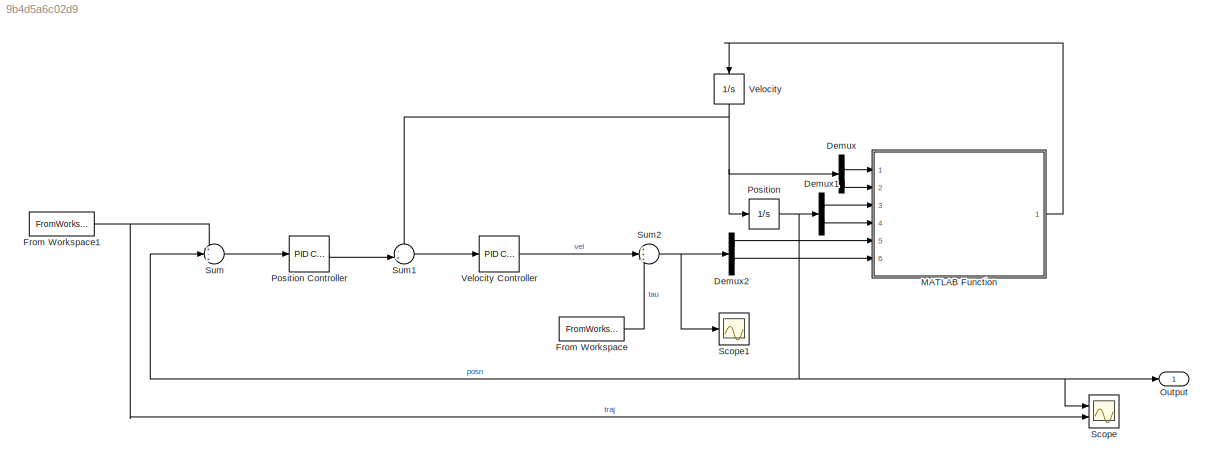
MODEL slx_9b4d5a6c02d9
KIND model
CONFIG AbsTol = auto
CONFIG EnableMultiTasking = off
CONFIG FixedStep = auto
CONFIG MaxStep = auto
CONFIG MinStep = auto
CONFIG RelTol = 1e-3
CONFIG SampleTimeConstraint = Unconstrained
CONFIG Solver = VariableStepAuto
CONFIG SolverName = VariableStepAuto
CONFIG StartTime = 0.0
CONFIG StopTime = 4
BLOCK [Demux] Demux
  DisplayOption = bar
  Outputs = 2
  Ports = [1, 2]
BLOCK [Demux] Demux1
  DisplayOption = bar
  Outputs = 2
  Ports = [1, 2]
BLOCK [Demux] Demux2
  DisplayOption = bar
  Outputs = 2
  Ports = [1, 2]
BLOCK [FromWorkspace] From Workspace
  Interpolate = off
  OutputAfterFinalValue = Setting to zero
  SampleTime = 0
  VariableName = torques
  ZeroCross = on
BLOCK [FromWorkspace] From Workspace1
  Interpolate = off
  OutputAfterFinalValue = Holding final value
  SampleTime = 0
  VariableName = posn
  ZeroCross = on
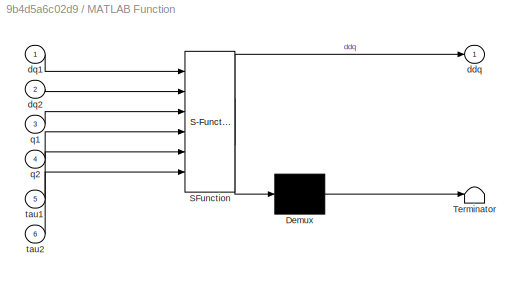
BLOCK [SubSystem] MATLAB Function
  ErrorFcn = Stateflow.Translate.translate
  PermitHierarchicalResolution = ExplicitOnly
  Ports = [6, 1]
  RequestExecContextInheritance = off
  SFBlockType = MATLAB Function
  TreatAsAtomicUnit = on
BLOCK [Demux] MATLAB Function/ Demux 
  Outputs = 1
  Ports = [1, 1]
BLOCK [S-Function] MATLAB Function/ SFunction 
  EnableBusSupport = on
  FunctionName = sf_sfun
  PortCounts = [6 2]
  Ports = [6, 2]
  SFcnIsStateOwnerBlock = off
  SFunctionDeploymentMode = off
  Tag = Stateflow S-Function 2
BLOCK [Terminator] MATLAB Function/ Terminator 
BLOCK [Outport] MATLAB Function/ddq
  IconDisplay = Port number
BLOCK [Inport] MATLAB Function/dq1
  IconDisplay = Port number
BLOCK [Inport] MATLAB Function/dq2
  IconDisplay = Port number
  Port = 2
BLOCK [Inport] MATLAB Function/q1
  IconDisplay = Port number
  Port = 3
BLOCK [Inport] MATLAB Function/q2
  IconDisplay = Port number
  Port = 4
BLOCK [Inport] MATLAB Function/tau1
  IconDisplay = Port number
  Port = 5
BLOCK [Inport] MATLAB Function/tau2
  IconDisplay = Port number
  Port = 6
BLOCK [Outport] Output
  IconDisplay = Port number
BLOCK [Integrator] Position
  InitialCondition = [-pi/2, 0]
  Ports = [1, 1]
BLOCK [Reference] Position Controller  REF=simulink/Continuous/PID Controller
  Ports = [1, 1]
  SourceBlock = simulink/Continuous/PID Controller
  SourceProductBaseCode = SL
  SourceProductName = Simulink
  SourceType = PID 1dof
BLOCK [Scope] Scope
  Floating = off
  NumInputPorts = 2
  Ports = [2]
  ScopeSpecificationString = Simulink.scopes.TimeScopeBlockCfg('CurrentConfiguration', extmgr.ConfigurationSet(extmgr.Configuration('Core','General UI',true),extmgr.Configuration('Core','Source UI',true),extmgr.Configuration('Sources','WiredSimulink',true),extmgr.Configuration('Visuals','Time Domain',true,'SerializedDisplays',{struct('MinYLimReal','-3.53617','MaxYLimReal','2.63446','YLabelReal','','MinYLimMag','0.00000','MaxY...<+1459ch>
BLOCK [Scope] Scope1
  Floating = off
  NumInputPorts = 1
  Ports = [1]
  ScopeSpecificationString = Simulink.scopes.TimeScopeBlockCfg('CurrentConfiguration', extmgr.ConfigurationSet(extmgr.Configuration('Core','General UI',true),extmgr.Configuration('Core','Source UI',true),extmgr.Configuration('Sources','WiredSimulink',true,'DataLoggingVariableName','ScopeData1'),extmgr.Configuration('Visuals','Time Domain',true,'SerializedDisplays',{struct('MinYLimReal','-48.27244','MaxYLimReal','41.51992','YL...<+1380ch>
BLOCK [Sum] Sum
  IconShape = round
  InputSameDT = off
  Inputs = +-+
  OutDataTypeStr = Inherit: Inherit via internal rule
  Ports = [3, 1]
  SaturateOnIntegerOverflow = off
BLOCK [Sum] Sum1
  IconShape = round
  InputSameDT = off
  Inputs = -+|
  OutDataTypeStr = Inherit: Inherit via internal rule
  Ports = [2, 1]
  SaturateOnIntegerOverflow = off
BLOCK [Sum] Sum2
  IconShape = round
  InputSameDT = off
  Inputs = +++
  OutDataTypeStr = Inherit: Inherit via internal rule
  Ports = [3, 1]
  SaturateOnIntegerOverflow = off
BLOCK [Integrator] Velocity
  InitialCondition = [0, 0]
  Ports = [1, 1]
BLOCK [Reference] Velocity Controller  REF=simulink/Continuous/PID Controller
  Ports = [1, 1]
  SourceBlock = simulink/Continuous/PID Controller
  SourceProductBaseCode = SL
  SourceProductName = Simulink
  SourceType = PID 1dof
LINE Demux1:1 -> MATLAB Function:3
LINE Demux1:2 -> MATLAB Function:4
LINE Demux2:1 -> MATLAB Function:5
LINE Demux2:2 -> MATLAB Function:6
LINE Demux:1 -> MATLAB Function:1
LINE Demux:2 -> MATLAB Function:2
NET From Workspace1:1 -> Scope:2, Sum:1
LINE From Workspace:1 -> Sum2:3
LINE MATLAB Function:1 -> Velocity:1
LINE Position Controller:1 -> Sum1:2
NET Position:1 -> Demux1:1, Output:1, Scope:1, Sum:2
LINE Sum1:1 -> Velocity Controller:1
NET Sum2:1 -> Demux2:1, Scope1:1
LINE Sum:1 -> Position Controller:1
LINE Velocity Controller:1 -> Sum2:2
NET Velocity:1 -> Demux:1, Position:1, Sum1:1
note: NET lines group one-source signal fan-out (src -> all destinations, sorted); 1:1 wires keep LINE
CHART MATLAB Function states=1 transitions=1
  STATE_LABEL 'eML_blk_kernel()'
  STATE_LABEL 'SCRIPT:\nfunction ddq = pendulum_dyn(dq1,dq2,q1,q2,tau1,tau2)\nt2 = cos(q1);\nt3 = cos(q2);\nt4 = sin(q2);\nt5 = q1+q2;\nt6 = dq1.^2;\nt10 = -tau2;\nt7 = t3+1.0;\nt8 = t3.^2;\nt9 = cos(t5);\nt11 = t2.*2.0e+1;\nt12 = t4.*t6;\nt13 = -t11;\nt14 = t9.*1.0e+1;\nt15 = t8-2.0;\nt16 = -t14;\nt17 = 1.0./t15;\nt18 = t10+t12+t14;\nddq = [-t17.*(t13+t16+tau1+dq2.*t4.*(dq1+dq2)+dq1.*dq2.*t4)-t7.*t17.*t18;t7.*t17.*(t13+t16+tau1+d...<+55ch>'
